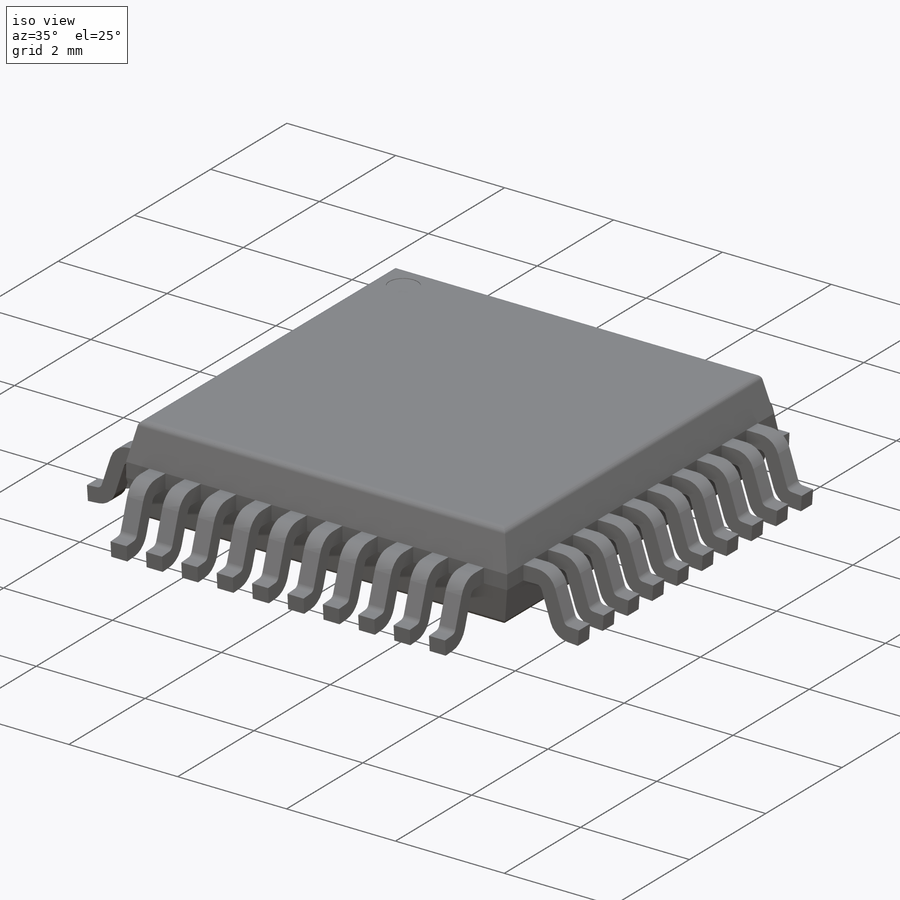
[diagram: iso view]
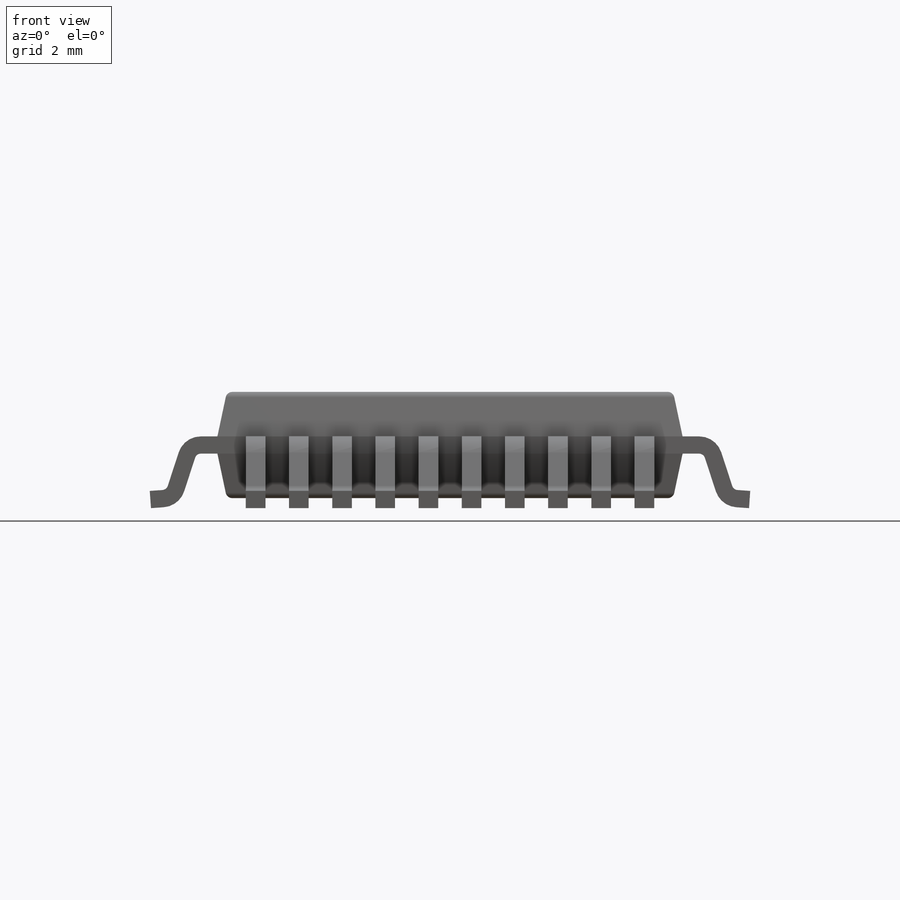
[diagram: front view]
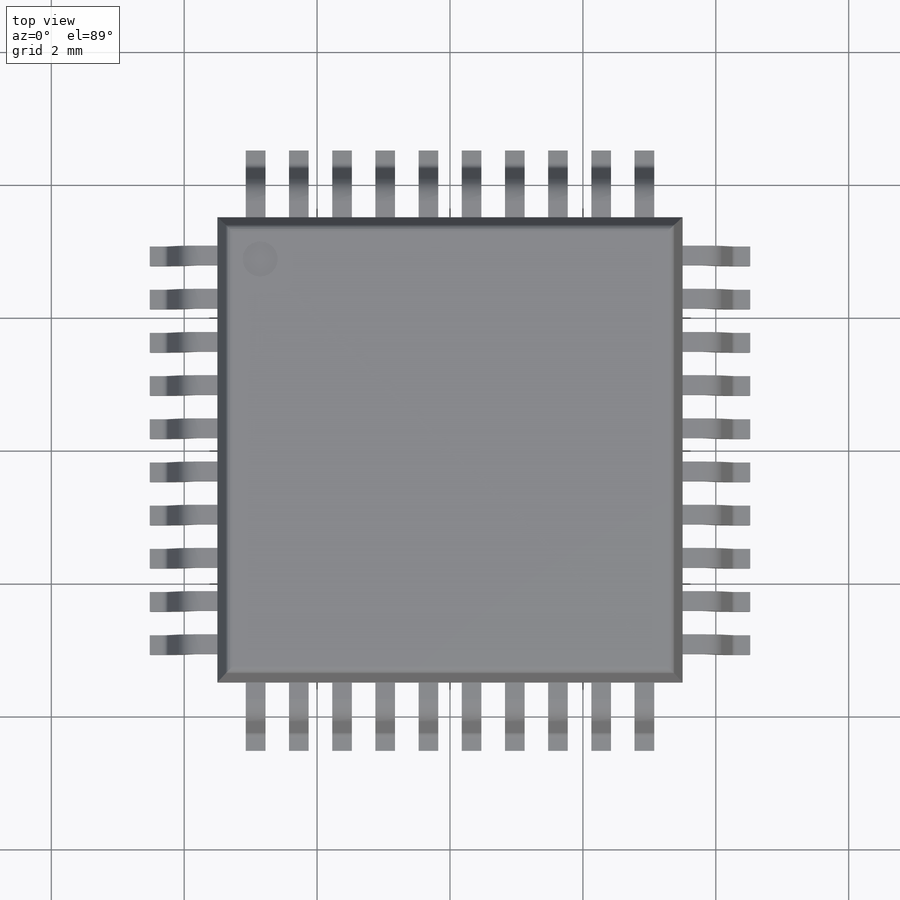
[diagram: top view]
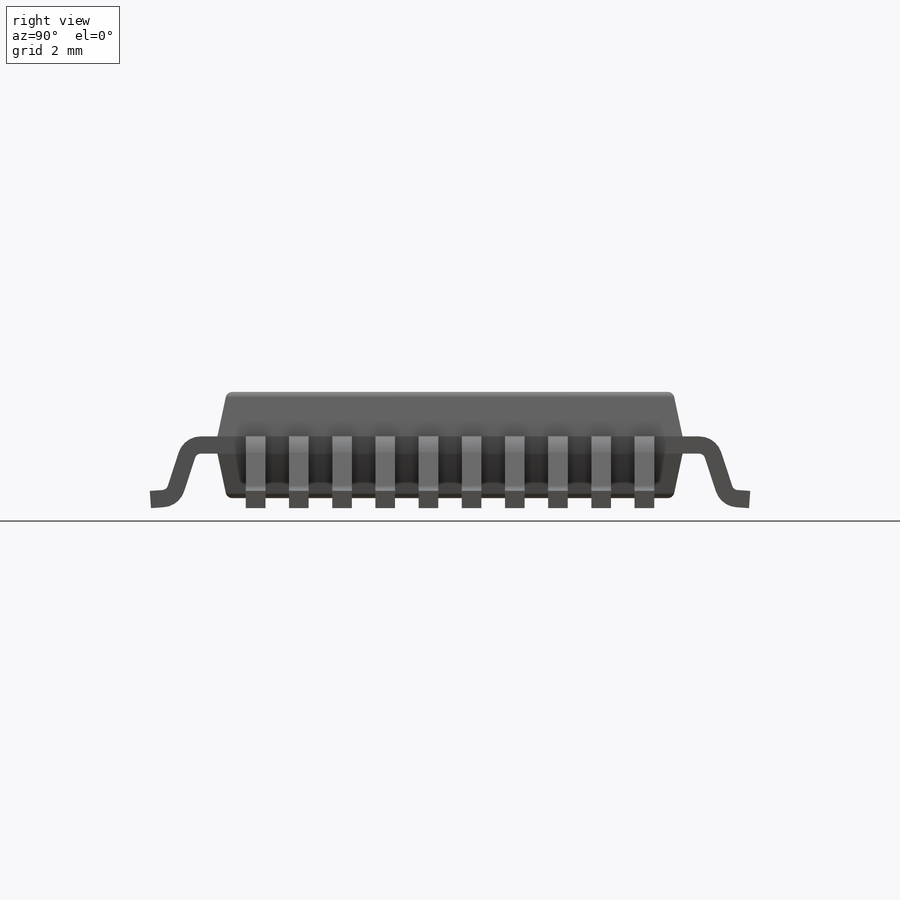
[diagram: right view]
SOLIDWORKS PART (.sldprt)
format: sldprt  version: not decoded by parser v0  size: 11,109,888 bytes
history: native  units: mm
features: plane x3, sketch x3, mirror x3, extrude x2, material x1, chamfer x1, fillet x1, cut_extrude x1, pattern_linear x1 + 1 further entry (+12 scaffold rows collapsed)
feature tree (29):
  scaffold x12  (default folders/planes/origin — collapsed)
  material  "Material <not specified>"
  "Design Table"
  plane  "Body Standoff"  Offset=0.15mm
  sketch  "Sketch1"  dims[D=10.0mm D2=1.0mm D3=4.5mm E1=10.0mm]
  extrude  "Body"  Depth=1.2mm
  chamfer  "Body Chamfer"  Distance=0.525mm Angle=12deg
  fillet  "Fillet1"  Radius=0.1mm
  sketch  "Sketch2"  dims[c1.D1=~0.527069mm c1.D2=~0.527069mm c2.D1=0.5mm c2.D2=0.5mm]
  cut_extrude  "Pin #1 Indent"  Depth=0.01mm
  plane  "Pin Offset"  Offset=4mm
  sketch  "Sketch3"  dims[c1.R=0.09mm c1.D1=~0.289275mm c1.θ1=4.0deg c1.c=0.2mm c1.L=0.5mm c1.D5=0.2mm c1.S=0.25mm c1.c_=0.2mm c1.E/2=3.25mm c2.D1=1.0mm c2.D2=0.15mm]
  extrude  "Pin"  Depth=0.454545mm
  plane  "Plane1"
  pattern_linear  "LPattern1"  Count1=9 Count2=1 Spacing1=1mm Spacing2=10mm
  mirror  "Mirror1"
  mirror  "Mirror2"
  mirror  "Mirror3"
decode coverage: 9 of 12 modeling features carry decoded parameters; 1 rows unclassified (native names shown)
note: ~ marks probable driven/reference dimensions
note: suppression state not decoded; provenance and decode notes live in map.json
